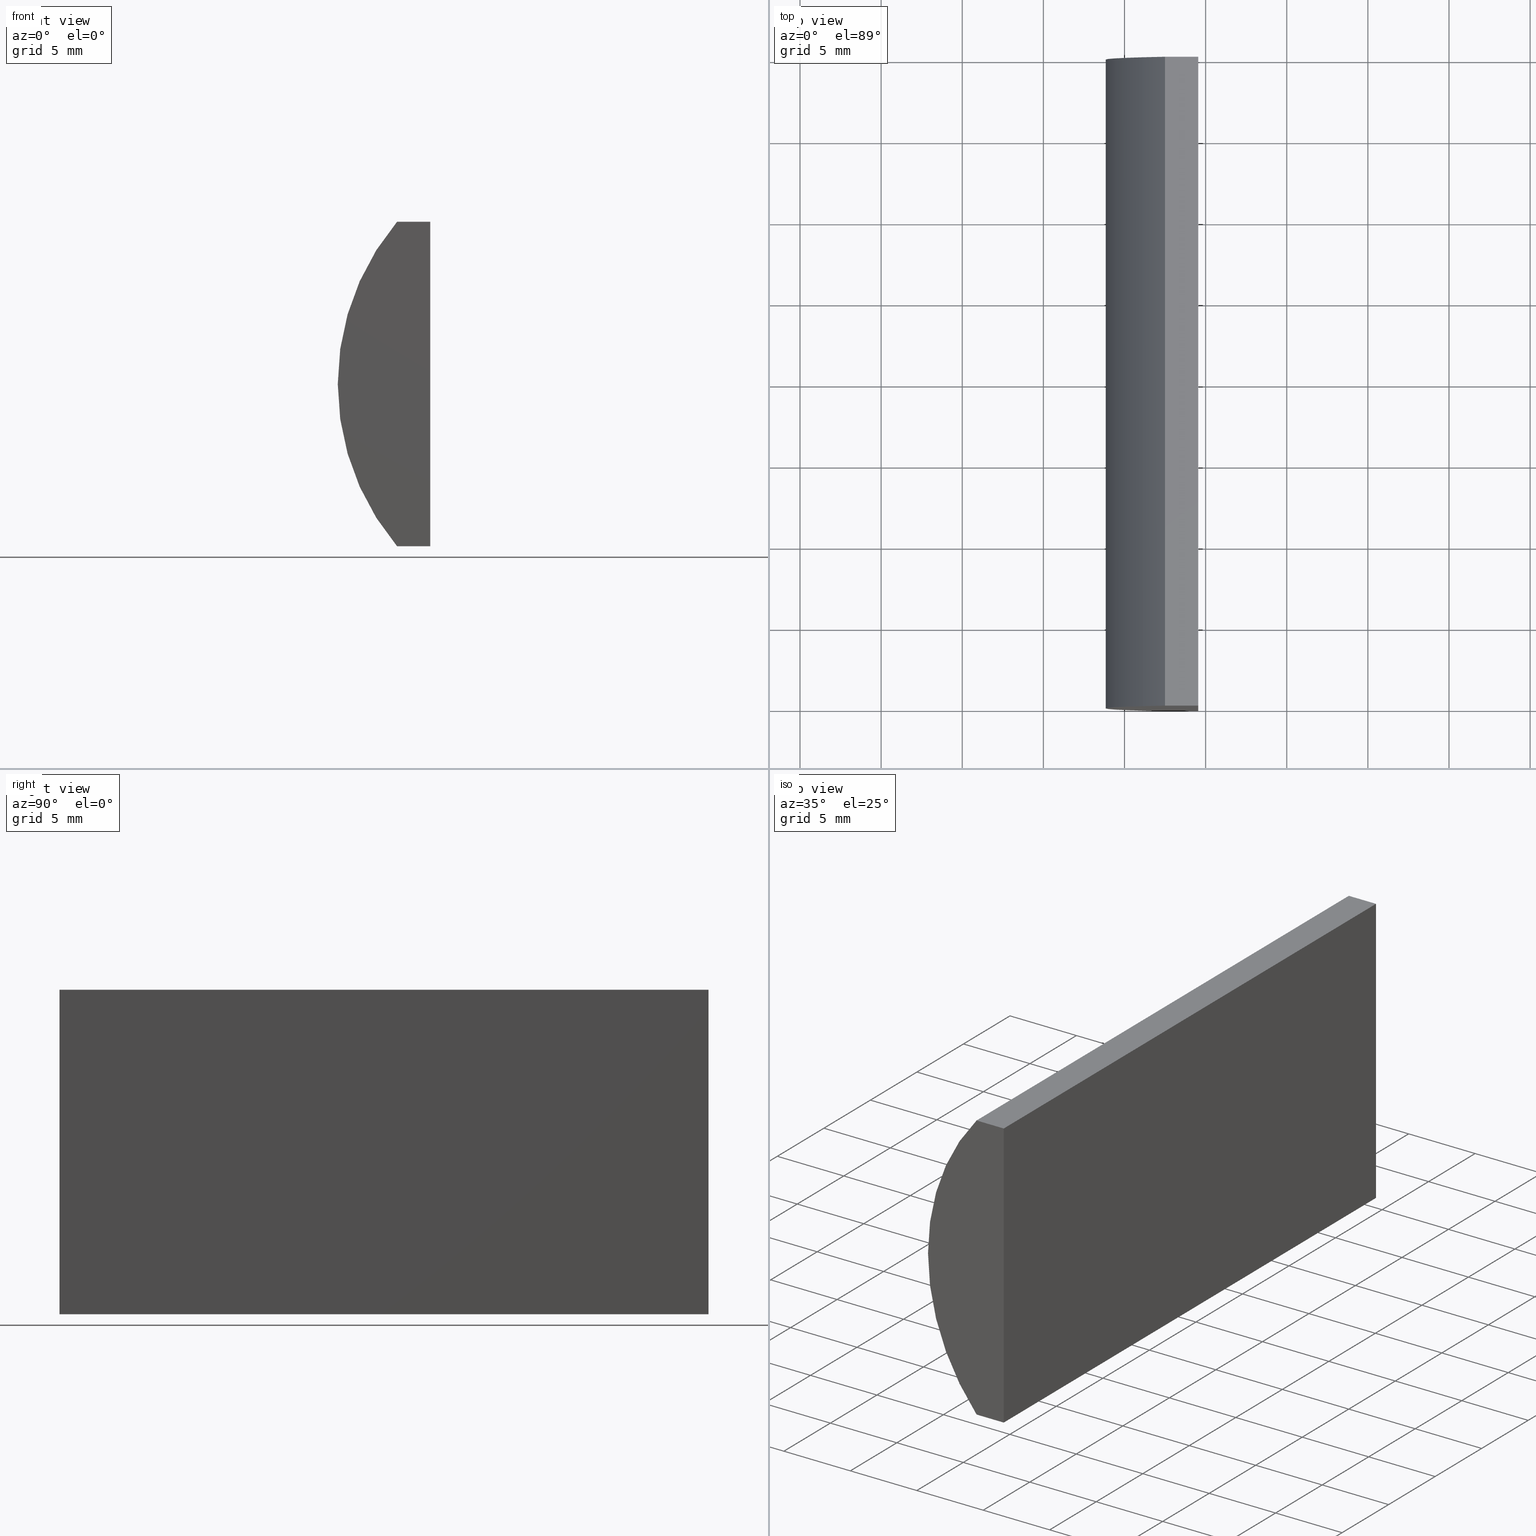
[diagram: canonical four-view strip — front | top / right | iso, engineering-drawing reading convention]
A machine part, canonical four-view strip (front | top / right | iso — engineering-drawing reading convention). The complete STEP part file that produces these views, byte-faithful:
ISO-10303-21;
HEADER;
FILE_DESCRIPTION (( 'STEP AP214' ),
    '1' );
FILE_NAME ('155045.STEP',
    '2019-06-18T03:23:56',
    ( 'user' ),
    ( '΢���й�' ),
    'SwSTEP 2.0',
    'SolidWorks 2016',
    '' );
FILE_SCHEMA (( 'AUTOMOTIVE_DESIGN' ));
ENDSEC;

DATA;
#1 = EDGE_LOOP ( 'NONE', ( #110, #25, #150, #64 ) ) ;
#2 = DIRECTION ( 'NONE',  ( 0.0000000000000000000, 0.0000000000000000000, 1.000000000000000000 ) ) ;
#3 = CARTESIAN_POINT ( 'NONE',  ( -5.454795665148731500, 40.00000000000000000, 10.00000000000000000 ) ) ;
#4 = EDGE_LOOP ( 'NONE', ( #168, #137, #106, #161 ) ) ;
#5 = DIRECTION ( 'NONE',  ( 0.0000000000000000000, 0.0000000000000000000, 1.000000000000000000 ) ) ;
#6 = EDGE_CURVE ( 'NONE', #167, #100, #8, .T. ) ;
#7 = VERTEX_POINT ( 'NONE', #77 ) ;
#8 = LINE ( 'NONE', #145, #83 ) ;
#9 = DIRECTION ( 'NONE',  ( -0.0000000000000000000, -1.000000000000000000, -0.0000000000000000000 ) ) ;
#10 = FACE_OUTER_BOUND ( 'NONE', #17, .T. ) ;
#11 =( NAMED_UNIT ( * ) SI_UNIT ( $, .STERADIAN. ) SOLID_ANGLE_UNIT ( ) );
#12 = AXIS2_PLACEMENT_3D ( 'NONE', #197, #97, #198 ) ;
#13 = SURFACE_STYLE_USAGE ( .BOTH. , #24 ) ;
#14 = ADVANCED_FACE ( 'NONE', ( #113 ), #90, .F. ) ;
#15 = ORIENTED_EDGE ( 'NONE', *, *, #118, .T. ) ;
#16 = ADVANCED_FACE ( 'NONE', ( #201 ), #37, .F. ) ;
#17 = EDGE_LOOP ( 'NONE', ( #112, #74, #185, #81 ) ) ;
#18 = CARTESIAN_POINT ( 'NONE',  ( -7.500600150716129700, 40.00000000000000000, -10.00000000000000000 ) ) ;
#19 = CLOSED_SHELL ( 'NONE', ( #156, #115, #14, #133, #119, #16 ) ) ;
#20 = EDGE_CURVE ( 'NONE', #117, #167, #108, .T. ) ;
#21 = PLANE ( 'NONE',  #135 ) ;
#22 = CARTESIAN_POINT ( 'NONE',  ( -5.454795665148737700, 40.00000000000000000, -10.00000000000000000 ) ) ;
#23 = PRODUCT ( '155045', '155045', '', ( #48 ) ) ;
#24 = SURFACE_SIDE_STYLE ('',( #170 ) ) ;
#25 = ORIENTED_EDGE ( 'NONE', *, *, #6, .F. ) ;
#26 = VECTOR ( 'NONE', #63, 1000.000000000000000 ) ;
#27 = PLANE ( 'NONE',  #31 ) ;
#28 = AXIS2_PLACEMENT_3D ( 'NONE', #54, #179, #59 ) ;
#29 = DIRECTION ( 'NONE',  ( 0.0000000000000000000, 1.000000000000000000, 0.0000000000000000000 ) ) ;
#30 = ORIENTED_EDGE ( 'NONE', *, *, #85, .F. ) ;
#31 = AXIS2_PLACEMENT_3D ( 'NONE', #40, #139, #177 ) ;
#32 = UNCERTAINTY_MEASURE_WITH_UNIT (LENGTH_MEASURE( 1.000000000000000100E-005 ), #171, 'distance_accuracy_value', 'NONE');
#33 = SURFACE_STYLE_FILL_AREA ( #43 ) ;
#34 = EDGE_CURVE ( 'NONE', #100, #126, #103, .T. ) ;
#35 = FILL_AREA_STYLE_COLOUR ( '', #56 ) ;
#36 = ORIENTED_EDGE ( 'NONE', *, *, #85, .T. ) ;
#37 = PLANE ( 'NONE',  #53 ) ;
#38 = AXIS2_PLACEMENT_3D ( 'NONE', #160, #153, #2 ) ;
#39 = VECTOR ( 'NONE', #105, 1000.000000000000000 ) ;
#40 = CARTESIAN_POINT ( 'NONE',  ( -7.500600150716129700, 40.00000000000000000, -10.00000000000000000 ) ) ;
#41 =( NAMED_UNIT ( * ) PLANE_ANGLE_UNIT ( ) SI_UNIT ( $, .RADIAN. ) );
#42 =( GEOMETRIC_REPRESENTATION_CONTEXT ( 3 ) GLOBAL_UNCERTAINTY_ASSIGNED_CONTEXT ( ( #32 ) ) GLOBAL_UNIT_ASSIGNED_CONTEXT ( ( #171, #75, #11 ) ) REPRESENTATION_CONTEXT ( 'NONE', 'WORKASPACE' ) );
#43 = FILL_AREA_STYLE ('',( #95 ) ) ;
#44 = PRESENTATION_STYLE_ASSIGNMENT (( #13 ) ) ;
#45 = CARTESIAN_POINT ( 'NONE',  ( -7.500600150716129700, 40.00000000000000000, 10.00000000000000000 ) ) ;
#46 = DIRECTION ( 'NONE',  ( -0.0000000000000000000, -1.000000000000000000, -0.0000000000000000000 ) ) ;
#47 = ADVANCED_BREP_SHAPE_REPRESENTATION ( '155045', ( #109, #129 ), #42 ) ;
#48 = PRODUCT_CONTEXT ( 'NONE', #195, 'mechanical' ) ;
#49 = EDGE_CURVE ( 'NONE', #167, #7, #70, .T. ) ;
#50 = VERTEX_POINT ( 'NONE', #158 ) ;
#51 = LINE ( 'NONE', #151, #183 ) ;
#52 = DIRECTION ( 'NONE',  ( 0.0000000000000000000, 1.000000000000000000, 0.0000000000000000000 ) ) ;
#53 = AXIS2_PLACEMENT_3D ( 'NONE', #73, #52, #164 ) ;
#54 = CARTESIAN_POINT ( 'NONE',  ( -5.454795665148737700, 40.00000000000000000, -10.00000000000000000 ) ) ;
#55 = AXIS2_PLACEMENT_3D ( 'NONE', #144, #181, #98 ) ;
#56 = COLOUR_RGB ( '',1.000000000000000000, 1.000000000000000000, 1.000000000000000000 ) ;
#57 = CARTESIAN_POINT ( 'NONE',  ( -5.454795665148737700, 0.0000000000000000000, -10.00000000000000000 ) ) ;
#58 = CARTESIAN_POINT ( 'NONE',  ( -7.500600150716129700, 40.00000000000000000, 10.00000000000000000 ) ) ;
#59 = DIRECTION ( 'NONE',  ( 3.035766082959412400E-016, 0.0000000000000000000, 1.000000000000000000 ) ) ;
#60 = EDGE_CURVE ( 'NONE', #169, #100, #138, .T. ) ;
#61 = CARTESIAN_POINT ( 'NONE',  ( 0.0000000000000000000, 0.0000000000000000000, 0.0000000000000000000 ) ) ;
#62 =( LENGTH_UNIT ( ) NAMED_UNIT ( * ) SI_UNIT ( .MILLI., .METRE. ) );
#63 = DIRECTION ( 'NONE',  ( -3.035766082959412400E-016, -0.0000000000000000000, -1.000000000000000000 ) ) ;
#64 = ORIENTED_EDGE ( 'NONE', *, *, #104, .T. ) ;
#65 = DIRECTION ( 'NONE',  ( 0.0000000000000000000, 0.0000000000000000000, 1.000000000000000000 ) ) ;
#66 = STYLED_ITEM ( 'NONE', ( #44 ), #109 ) ;
#67 = ORIENTED_EDGE ( 'NONE', *, *, #34, .F. ) ;
#68 = STYLED_ITEM ( 'NONE', ( #186 ), #47 ) ;
#69 = ORIENTED_EDGE ( 'NONE', *, *, #104, .F. ) ;
#70 = LINE ( 'NONE', #136, #39 ) ;
#71 = SHAPE_DEFINITION_REPRESENTATION ( #124, #47 ) ;
#72 = EDGE_CURVE ( 'NONE', #7, #126, #182, .T. ) ;
#73 = CARTESIAN_POINT ( 'NONE',  ( 4.355204334851265500, 0.0000000000000000000, 4.286263797015675000E-017 ) ) ;
#74 = ORIENTED_EDGE ( 'NONE', *, *, #72, .F. ) ;
#75 =( NAMED_UNIT ( * ) PLANE_ANGLE_UNIT ( ) SI_UNIT ( $, .RADIAN. ) );
#76 = FACE_OUTER_BOUND ( 'NONE', #86, .T. ) ;
#77 = CARTESIAN_POINT ( 'NONE',  ( -7.500600150716129700, 40.00000000000000000, -10.00000000000000000 ) ) ;
#78 = PRESENTATION_LAYER_ASSIGNMENT (  '', '', ( #66 ) ) ;
#79 = PRESENTATION_LAYER_ASSIGNMENT (  '', '', ( #68 ) ) ;
#80 = CARTESIAN_POINT ( 'NONE',  ( -7.500600150716129700, 0.0000000000000000000, -10.00000000000000000 ) ) ;
#81 = ORIENTED_EDGE ( 'NONE', *, *, #6, .T. ) ;
#82 = APPLICATION_PROTOCOL_DEFINITION ( 'draft international standard', 'automotive_design', 1998, #187 ) ;
#83 = VECTOR ( 'NONE', #9, 1000.000000000000000 ) ;
#84 = VECTOR ( 'NONE', #147, 1000.000000000000000 ) ;
#85 = EDGE_CURVE ( 'NONE', #126, #50, #87, .T. ) ;
#86 = EDGE_LOOP ( 'NONE', ( #36, #157, #148, #142 ) ) ;
#87 = CIRCLE ( 'NONE', #38, 15.51000000000000000 ) ;
#88 = MECHANICAL_DESIGN_GEOMETRIC_PRESENTATION_REPRESENTATION (  '', ( #66 ), #99 ) ;
#89 = CIRCLE ( 'NONE', #107, 15.51000000000000000 ) ;
#90 = PLANE ( 'NONE',  #28 ) ;
#91 = MECHANICAL_DESIGN_GEOMETRIC_PRESENTATION_REPRESENTATION (  '', ( #68 ), #101 ) ;
#92 = ORIENTED_EDGE ( 'NONE', *, *, #131, .F. ) ;
#93 = APPLICATION_PROTOCOL_DEFINITION ( 'draft international standard', 'automotive_design', 1998, #195 ) ;
#94 = EDGE_CURVE ( 'NONE', #130, #50, #176, .T. ) ;
#95 = FILL_AREA_STYLE_COLOUR ( '', #163 ) ;
#96 = CARTESIAN_POINT ( 'NONE',  ( -5.454795665148737700, 0.0000000000000000000, -10.00000000000000000 ) ) ;
#97 = DIRECTION ( 'NONE',  ( 0.0000000000000000000, 1.000000000000000000, 0.0000000000000000000 ) ) ;
#98 = DIRECTION ( 'NONE',  ( 0.0000000000000000000, 0.0000000000000000000, -1.000000000000000000 ) ) ;
#99 =( GEOMETRIC_REPRESENTATION_CONTEXT ( 3 ) GLOBAL_UNCERTAINTY_ASSIGNED_CONTEXT ( ( #202 ) ) GLOBAL_UNIT_ASSIGNED_CONTEXT ( ( #62, #189, #125 ) ) REPRESENTATION_CONTEXT ( 'NONE', 'WORKASPACE' ) );
#100 = VERTEX_POINT ( 'NONE', #57 ) ;
#101 =( GEOMETRIC_REPRESENTATION_CONTEXT ( 3 ) GLOBAL_UNCERTAINTY_ASSIGNED_CONTEXT ( ( #155 ) ) GLOBAL_UNIT_ASSIGNED_CONTEXT ( ( #127, #41, #180 ) ) REPRESENTATION_CONTEXT ( 'NONE', 'WORKASPACE' ) );
#102 = VECTOR ( 'NONE', #178, 1000.000000000000000 ) ;
#103 = LINE ( 'NONE', #172, #84 ) ;
#104 = EDGE_CURVE ( 'NONE', #117, #169, #191, .T. ) ;
#105 = DIRECTION ( 'NONE',  ( -1.000000000000000000, -0.0000000000000000000, -0.0000000000000000000 ) ) ;
#106 = ORIENTED_EDGE ( 'NONE', *, *, #20, .T. ) ;
#107 = AXIS2_PLACEMENT_3D ( 'NONE', #193, #29, #65 ) ;
#108 = LINE ( 'NONE', #22, #194 ) ;
#109 = MANIFOLD_SOLID_BREP ( '͹̨-����1', #19 ) ;
#110 = ORIENTED_EDGE ( 'NONE', *, *, #60, .T. ) ;
#111 = EDGE_CURVE ( 'NONE', #7, #130, #89, .T. ) ;
#112 = ORIENTED_EDGE ( 'NONE', *, *, #34, .T. ) ;
#113 = FACE_OUTER_BOUND ( 'NONE', #1, .T. ) ;
#114 = VECTOR ( 'NONE', #165, 1000.000000000000000 ) ;
#115 = ADVANCED_FACE ( 'NONE', ( #132 ), #21, .F. ) ;
#116 = DIRECTION ( 'NONE',  ( -1.000000000000000000, 0.0000000000000000000, -0.0000000000000000000 ) ) ;
#117 = VERTEX_POINT ( 'NONE', #175 ) ;
#118 = EDGE_CURVE ( 'NONE', #50, #169, #196, .T. ) ;
#119 = ADVANCED_FACE ( 'NONE', ( #162 ), #143, .T. ) ;
#120 = EDGE_LOOP ( 'NONE', ( #15, #69, #92, #203 ) ) ;
#121 = DIRECTION ( 'NONE',  ( -3.035766082959412400E-016, -0.0000000000000000000, -1.000000000000000000 ) ) ;
#122 = DIRECTION ( 'NONE',  ( 1.000000000000000000, 0.0000000000000000000, 0.0000000000000000000 ) ) ;
#123 = CYLINDRICAL_SURFACE ( 'NONE', #55, 15.51000000000000000 ) ;
#124 = PRODUCT_DEFINITION_SHAPE ( 'NONE', 'NONE',  #140 ) ;
#125 =( NAMED_UNIT ( * ) SI_UNIT ( $, .STERADIAN. ) SOLID_ANGLE_UNIT ( ) );
#126 = VERTEX_POINT ( 'NONE', #80 ) ;
#127 =( LENGTH_UNIT ( ) NAMED_UNIT ( * ) SI_UNIT ( .MILLI., .METRE. ) );
#128 = VECTOR ( 'NONE', #141, 1000.000000000000000 ) ;
#129 = AXIS2_PLACEMENT_3D ( 'NONE', #61, #5, #122 ) ;
#130 = VERTEX_POINT ( 'NONE', #45 ) ;
#131 = EDGE_CURVE ( 'NONE', #130, #117, #51, .T. ) ;
#132 = FACE_OUTER_BOUND ( 'NONE', #120, .T. ) ;
#133 = ADVANCED_FACE ( 'NONE', ( #10 ), #27, .F. ) ;
#134 = DIRECTION ( 'NONE',  ( 1.000000000000000000, 0.0000000000000000000, 0.0000000000000000000 ) ) ;
#135 = AXIS2_PLACEMENT_3D ( 'NONE', #58, #173, #116 ) ;
#136 = CARTESIAN_POINT ( 'NONE',  ( -7.500600150716129700, 40.00000000000000000, -10.00000000000000000 ) ) ;
#137 = ORIENTED_EDGE ( 'NONE', *, *, #131, .T. ) ;
#138 = LINE ( 'NONE', #96, #26 ) ;
#139 = DIRECTION ( 'NONE',  ( 0.0000000000000000000, 0.0000000000000000000, 1.000000000000000000 ) ) ;
#140 = PRODUCT_DEFINITION ( 'δ֪', '', #149, #152 ) ;
#141 = DIRECTION ( 'NONE',  ( 1.000000000000000000, 0.0000000000000000000, 0.0000000000000000000 ) ) ;
#142 = ORIENTED_EDGE ( 'NONE', *, *, #72, .T. ) ;
#143 = PLANE ( 'NONE',  #12 ) ;
#144 = CARTESIAN_POINT ( 'NONE',  ( 4.355204334851265500, 40.00000000000000000, 4.286263797015675000E-017 ) ) ;
#145 = CARTESIAN_POINT ( 'NONE',  ( -5.454795665148737700, 40.00000000000000000, -10.00000000000000000 ) ) ;
#146 = ORIENTED_EDGE ( 'NONE', *, *, #60, .F. ) ;
#147 = DIRECTION ( 'NONE',  ( -1.000000000000000000, -0.0000000000000000000, -0.0000000000000000000 ) ) ;
#148 = ORIENTED_EDGE ( 'NONE', *, *, #111, .F. ) ;
#149 = PRODUCT_DEFINITION_FORMATION_WITH_SPECIFIED_SOURCE ( '�κ�', '', #23, .NOT_KNOWN. ) ;
#150 = ORIENTED_EDGE ( 'NONE', *, *, #20, .F. ) ;
#151 = CARTESIAN_POINT ( 'NONE',  ( -7.500600150716129700, 40.00000000000000000, 10.00000000000000000 ) ) ;
#152 = PRODUCT_DEFINITION_CONTEXT ( 'detailed design', #187, 'design' ) ;
#153 = DIRECTION ( 'NONE',  ( 0.0000000000000000000, 1.000000000000000000, 0.0000000000000000000 ) ) ;
#154 = SURFACE_SIDE_STYLE ('',( #33 ) ) ;
#155 = UNCERTAINTY_MEASURE_WITH_UNIT (LENGTH_MEASURE( 1.000000000000000100E-005 ), #127, 'distance_accuracy_value', 'NONE');
#156 = ADVANCED_FACE ( 'NONE', ( #76 ), #123, .T. ) ;
#157 = ORIENTED_EDGE ( 'NONE', *, *, #94, .F. ) ;
#158 = CARTESIAN_POINT ( 'NONE',  ( -7.500600150716129700, 0.0000000000000000000, 10.00000000000000000 ) ) ;
#159 = CARTESIAN_POINT ( 'NONE',  ( -5.454795665148737700, 40.00000000000000000, -10.00000000000000000 ) ) ;
#160 = CARTESIAN_POINT ( 'NONE',  ( 4.355204334851265500, 0.0000000000000000000, 4.286263797015675000E-017 ) ) ;
#161 = ORIENTED_EDGE ( 'NONE', *, *, #49, .T. ) ;
#162 = FACE_OUTER_BOUND ( 'NONE', #4, .T. ) ;
#163 = COLOUR_RGB ( '',1.000000000000000000, 1.000000000000000000, 1.000000000000000000 ) ;
#164 = DIRECTION ( 'NONE',  ( 0.0000000000000000000, -0.0000000000000000000, 1.000000000000000000 ) ) ;
#165 = DIRECTION ( 'NONE',  ( -0.0000000000000000000, -1.000000000000000000, -0.0000000000000000000 ) ) ;
#166 = PRODUCT_RELATED_PRODUCT_CATEGORY ( 'part', '', ( #23 ) ) ;
#167 = VERTEX_POINT ( 'NONE', #159 ) ;
#168 = ORIENTED_EDGE ( 'NONE', *, *, #111, .T. ) ;
#169 = VERTEX_POINT ( 'NONE', #174 ) ;
#170 = SURFACE_STYLE_FILL_AREA ( #192 ) ;
#171 =( LENGTH_UNIT ( ) NAMED_UNIT ( * ) SI_UNIT ( .MILLI., .METRE. ) );
#172 = CARTESIAN_POINT ( 'NONE',  ( -7.500600150716129700, 0.0000000000000000000, -10.00000000000000000 ) ) ;
#173 = DIRECTION ( 'NONE',  ( 0.0000000000000000000, 0.0000000000000000000, -1.000000000000000000 ) ) ;
#174 = CARTESIAN_POINT ( 'NONE',  ( -5.454795665148731500, 0.0000000000000000000, 10.00000000000000000 ) ) ;
#175 = CARTESIAN_POINT ( 'NONE',  ( -5.454795665148731500, 40.00000000000000000, 10.00000000000000000 ) ) ;
#176 = LINE ( 'NONE', #184, #200 ) ;
#177 = DIRECTION ( 'NONE',  ( 1.000000000000000000, 0.0000000000000000000, -0.0000000000000000000 ) ) ;
#178 = DIRECTION ( 'NONE',  ( -0.0000000000000000000, -1.000000000000000000, -0.0000000000000000000 ) ) ;
#179 = DIRECTION ( 'NONE',  ( -1.000000000000000000, 0.0000000000000000000, 3.035766082959412400E-016 ) ) ;
#180 =( NAMED_UNIT ( * ) SI_UNIT ( $, .STERADIAN. ) SOLID_ANGLE_UNIT ( ) );
#181 = DIRECTION ( 'NONE',  ( -0.0000000000000000000, -1.000000000000000000, -0.0000000000000000000 ) ) ;
#182 = LINE ( 'NONE', #18, #102 ) ;
#183 = VECTOR ( 'NONE', #134, 1000.000000000000000 ) ;
#184 = CARTESIAN_POINT ( 'NONE',  ( -7.500600150716129700, 40.00000000000000000, 10.00000000000000000 ) ) ;
#185 = ORIENTED_EDGE ( 'NONE', *, *, #49, .F. ) ;
#186 = PRESENTATION_STYLE_ASSIGNMENT (( #204 ) ) ;
#187 = APPLICATION_CONTEXT ( 'automotive_design' ) ;
#188 = CARTESIAN_POINT ( 'NONE',  ( -7.500600150716129700, 0.0000000000000000000, 10.00000000000000000 ) ) ;
#189 =( NAMED_UNIT ( * ) PLANE_ANGLE_UNIT ( ) SI_UNIT ( $, .RADIAN. ) );
#190 = EDGE_LOOP ( 'NONE', ( #30, #67, #146, #199 ) ) ;
#191 = LINE ( 'NONE', #3, #114 ) ;
#192 = FILL_AREA_STYLE ('',( #35 ) ) ;
#193 = CARTESIAN_POINT ( 'NONE',  ( 4.355204334851265500, 40.00000000000000000, 4.286263797015675000E-017 ) ) ;
#194 = VECTOR ( 'NONE', #121, 1000.000000000000000 ) ;
#195 = APPLICATION_CONTEXT ( 'automotive_design' ) ;
#196 = LINE ( 'NONE', #188, #128 ) ;
#197 = CARTESIAN_POINT ( 'NONE',  ( 4.355204334851265500, 40.00000000000000000, 4.286263797015675000E-017 ) ) ;
#198 = DIRECTION ( 'NONE',  ( 0.0000000000000000000, -0.0000000000000000000, 1.000000000000000000 ) ) ;
#199 = ORIENTED_EDGE ( 'NONE', *, *, #118, .F. ) ;
#200 = VECTOR ( 'NONE', #46, 1000.000000000000000 ) ;
#201 = FACE_OUTER_BOUND ( 'NONE', #190, .T. ) ;
#202 = UNCERTAINTY_MEASURE_WITH_UNIT (LENGTH_MEASURE( 1.000000000000000100E-005 ), #62, 'distance_accuracy_value', 'NONE');
#203 = ORIENTED_EDGE ( 'NONE', *, *, #94, .T. ) ;
#204 = SURFACE_STYLE_USAGE ( .BOTH. , #154 ) ;
ENDSEC;
END-ISO-10303-21;
